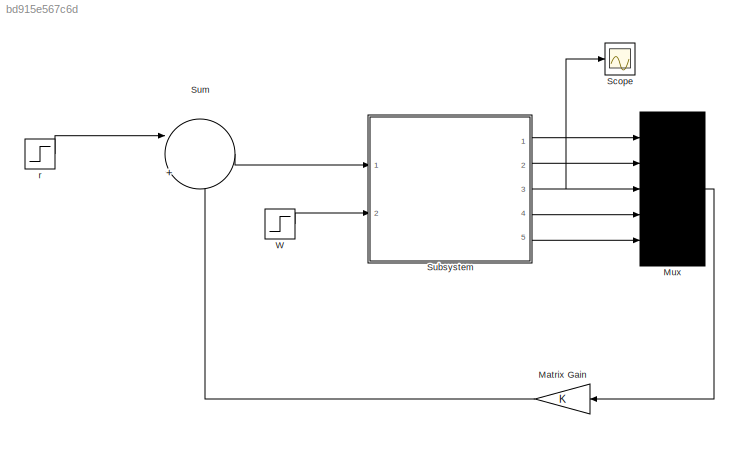
MODEL slx_bd915e567c6d
KIND model
CONFIG AbsTol = auto
CONFIG FixedStep = auto
CONFIG MaxStep = auto
CONFIG MinStep = auto
CONFIG RelTol = 1e-3
CONFIG SampleTimeConstraint = Unconstrained
CONFIG Solver = VariableStepAuto
CONFIG SolverMode = Auto
CONFIG SolverName = VariableStepAuto
CONFIG StartTime = 0.0
CONFIG StopTime = 10.0
BLOCK [Gain] Matrix Gain
  Gain = K
  Multiplication = Matrix(K*u)
  OutDataTypeStr = Inherit: Inherit via internal rule
  ParamDataTypeStr = Inherit: Inherit via internal rule
  SaturateOnIntegerOverflow = off
BLOCK [Mux] Mux
  Inputs = 5
  Ports = [5, 1]
BLOCK [Scope] Scope
  Ports = [1]
  ScopeSpecificationString = Simulink.scopes.TimeScopeBlockCfg('CurrentConfiguration', extmgr.ConfigurationSet(extmgr.Configuration('Core','General UI',true),extmgr.Configuration('Core','Source UI',true),extmgr.Configuration('Sources','WiredSimulink',true,'DataLoggingLimitDataPoints',true,'DataLoggingSaveFormat','Array','DataLoggingDecimation','1','DataLoggingDecimateData',true),extmgr.Configuration('Visuals','Time Domain',tr...<+1805ch>
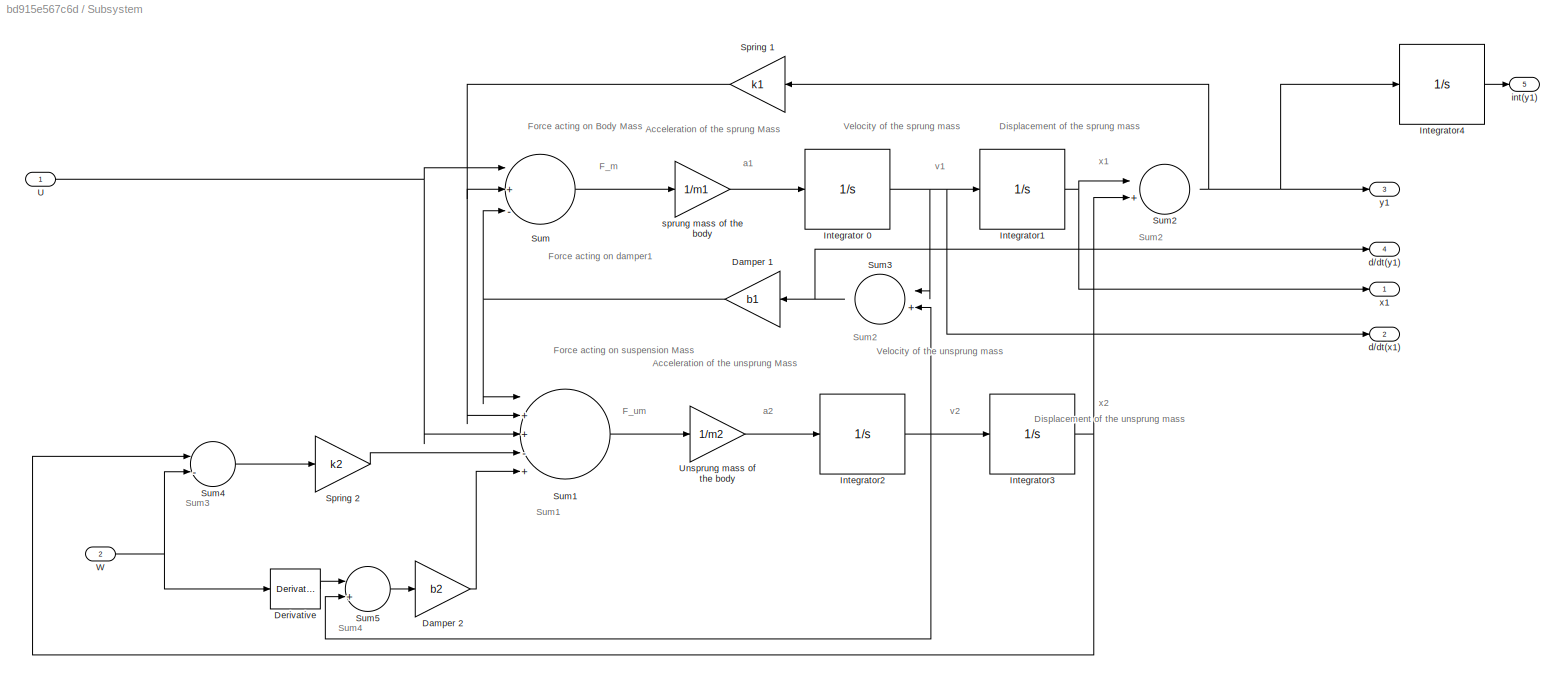
BLOCK [SubSystem] Subsystem
  Ports = [2, 5]
  RequestExecContextInheritance = off
  Variant = off
BLOCK [Gain] Subsystem/Damper 1
  Gain = b1
  OutDataTypeStr = Inherit: Inherit via internal rule
  ParamDataTypeStr = Inherit: Inherit via internal rule
  SaturateOnIntegerOverflow = off
BLOCK [Gain] Subsystem/Damper 2
  Gain = b2
  OutDataTypeStr = Inherit: Inherit via internal rule
  ParamDataTypeStr = Inherit: Inherit via internal rule
  SaturateOnIntegerOverflow = off
BLOCK [Derivative] Subsystem/Derivative
BLOCK [Integrator] Subsystem/Integrator 0
  Ports = [1, 1]
BLOCK [Integrator] Subsystem/Integrator1
  Ports = [1, 1]
BLOCK [Integrator] Subsystem/Integrator2
  Ports = [1, 1]
BLOCK [Integrator] Subsystem/Integrator3
  Ports = [1, 1]
BLOCK [Integrator] Subsystem/Integrator4
  Ports = [1, 1]
BLOCK [Gain] Subsystem/Spring 1
  Gain = k1
  OutDataTypeStr = Inherit: Inherit via internal rule
  ParamDataTypeStr = Inherit: Inherit via internal rule
  SaturateOnIntegerOverflow = off
BLOCK [Gain] Subsystem/Spring 2
  Gain = k2
  OutDataTypeStr = Inherit: Inherit via internal rule
  ParamDataTypeStr = Inherit: Inherit via internal rule
  SaturateOnIntegerOverflow = off
BLOCK [Sum] Subsystem/Sum
  InputSameDT = off
  Inputs = |+--
  OutDataTypeStr = Inherit: Inherit via internal rule
  Ports = [3, 1]
  SaturateOnIntegerOverflow = off
BLOCK [Sum] Subsystem/Sum1
  InputSameDT = off
  Inputs = |++-++
  OutDataTypeStr = Inherit: Inherit via internal rule
  Ports = [5, 1]
  SaturateOnIntegerOverflow = off
BLOCK [Sum] Subsystem/Sum2
  InputSameDT = off
  Inputs = |+-
  OutDataTypeStr = Inherit: Inherit via internal rule
  Ports = [2, 1]
  SaturateOnIntegerOverflow = off
BLOCK [Sum] Subsystem/Sum3
  InputSameDT = off
  Inputs = |+-
  OutDataTypeStr = Inherit: Inherit via internal rule
  Ports = [2, 1]
  SaturateOnIntegerOverflow = off
BLOCK [Sum] Subsystem/Sum4
  InputSameDT = off
  Inputs = |-+
  OutDataTypeStr = Inherit: Inherit via internal rule
  Ports = [2, 1]
  SaturateOnIntegerOverflow = off
BLOCK [Sum] Subsystem/Sum5
  InputSameDT = off
  Inputs = |+-
  OutDataTypeStr = Inherit: Inherit via internal rule
  Ports = [2, 1]
  SaturateOnIntegerOverflow = off
BLOCK [Inport] Subsystem/U
  IconDisplay = Port number
BLOCK [Gain] Subsystem/Unsprung mass of the body
  Gain = 1/m2
  OutDataTypeStr = Inherit: Inherit via internal rule
  ParamDataTypeStr = Inherit: Inherit via internal rule
  SaturateOnIntegerOverflow = off
BLOCK [Inport] Subsystem/W
  IconDisplay = Port number
  Port = 2
BLOCK [Outport] Subsystem/d//dt(x1)
  IconDisplay = Port number
  Port = 2
BLOCK [Outport] Subsystem/d//dt(y1)
  IconDisplay = Port number
  Port = 4
BLOCK [Outport] Subsystem/int(y1)
  IconDisplay = Port number
  Port = 5
BLOCK [Gain] Subsystem/sprung mass of the body
  Gain = 1/m1
  OutDataTypeStr = Inherit: Inherit via internal rule
  ParamDataTypeStr = Inherit: Inherit via internal rule
  SaturateOnIntegerOverflow = off
BLOCK [Outport] Subsystem/x1
  IconDisplay = Port number
BLOCK [Outport] Subsystem/y1
  IconDisplay = Port number
  Port = 3
BLOCK [Sum] Sum
  IconShape = round
  InputSameDT = off
  Inputs = |+-
  OutDataTypeStr = Inherit: Inherit via internal rule
  Ports = [2, 1]
  SaturateOnIntegerOverflow = off
BLOCK [Step] W
  SampleTime = 0
  Time = 0
BLOCK [Step] r
  After = 0
  SampleTime = 0
  Time = 0
ANNOTATION Subsystem: Acceleration of the sprung Mass
ANNOTATION Subsystem: Acceleration of the unsprung Mass
ANNOTATION Subsystem: Force acting on Body Mass
ANNOTATION Subsystem: Force acting on damper1
ANNOTATION Subsystem: Force acting on suspension Mass
ANNOTATION Subsystem: Displacement of the sprung mass
ANNOTATION Subsystem: Displacement of the unsprung mass
ANNOTATION Subsystem: F_m
ANNOTATION Subsystem: F_um
ANNOTATION Subsystem: Sum1
ANNOTATION Subsystem: Sum2
ANNOTATION Subsystem: Sum3
ANNOTATION Subsystem: Sum4
ANNOTATION Subsystem: Velocity of the sprung mass
ANNOTATION Subsystem: Velocity of the unsprung mass
ANNOTATION Subsystem: a1
ANNOTATION Subsystem: a2
ANNOTATION Subsystem: v1
ANNOTATION Subsystem: v2
ANNOTATION Subsystem: x1
ANNOTATION Subsystem: x2
LINE Matrix Gain:1 -> Sum:2
LINE Mux:1 -> Matrix Gain:1
NET Subsystem/Damper 1:1 -> Subsystem/Sum1:1, Subsystem/Sum:3
LINE Subsystem/Damper 2:1 -> Subsystem/Sum1:5
LINE Subsystem/Derivative:1 -> Subsystem/Sum5:1
NET Subsystem/Integrator 0:1 -> Subsystem/Integrator1:1, Subsystem/Sum3:1, Subsystem/d//dt(x1):1
NET Subsystem/Integrator1:1 -> Subsystem/Sum2:1, Subsystem/x1:1
NET Subsystem/Integrator2:1 -> Subsystem/Integrator3:1, Subsystem/Sum3:2, Subsystem/Sum5:2
NET Subsystem/Integrator3:1 -> Subsystem/Sum2:2, Subsystem/Sum4:1
LINE Subsystem/Integrator4:1 -> Subsystem/int(y1):1
NET Subsystem/Spring 1:1 -> Subsystem/Sum1:2, Subsystem/Sum:2
LINE Subsystem/Spring 2:1 -> Subsystem/Sum1:4
LINE Subsystem/Sum1:1 -> Subsystem/Unsprung mass of the body:1
NET Subsystem/Sum2:1 -> Subsystem/Integrator4:1, Subsystem/Spring 1:1, Subsystem/y1:1
NET Subsystem/Sum3:1 -> Subsystem/Damper 1:1, Subsystem/d//dt(y1):1
LINE Subsystem/Sum4:1 -> Subsystem/Spring 2:1
LINE Subsystem/Sum5:1 -> Subsystem/Damper 2:1
LINE Subsystem/Sum:1 -> Subsystem/sprung mass of the body:1
NET Subsystem/U:1 -> Subsystem/Sum1:3, Subsystem/Sum:1
LINE Subsystem/Unsprung mass of the body:1 -> Subsystem/Integrator2:1
NET Subsystem/W:1 -> Subsystem/Derivative:1, Subsystem/Sum4:2
LINE Subsystem/sprung mass of the body:1 -> Subsystem/Integrator 0:1
LINE Subsystem:1 -> Mux:1
LINE Subsystem:2 -> Mux:2
NET Subsystem:3 -> Mux:3, Scope:1
LINE Subsystem:4 -> Mux:4
LINE Subsystem:5 -> Mux:5
LINE Sum:1 -> Subsystem:1
LINE W:1 -> Subsystem:2
LINE r:1 -> Sum:1
note: NET lines group one-source signal fan-out (src -> all destinations, sorted); 1:1 wires keep LINE
